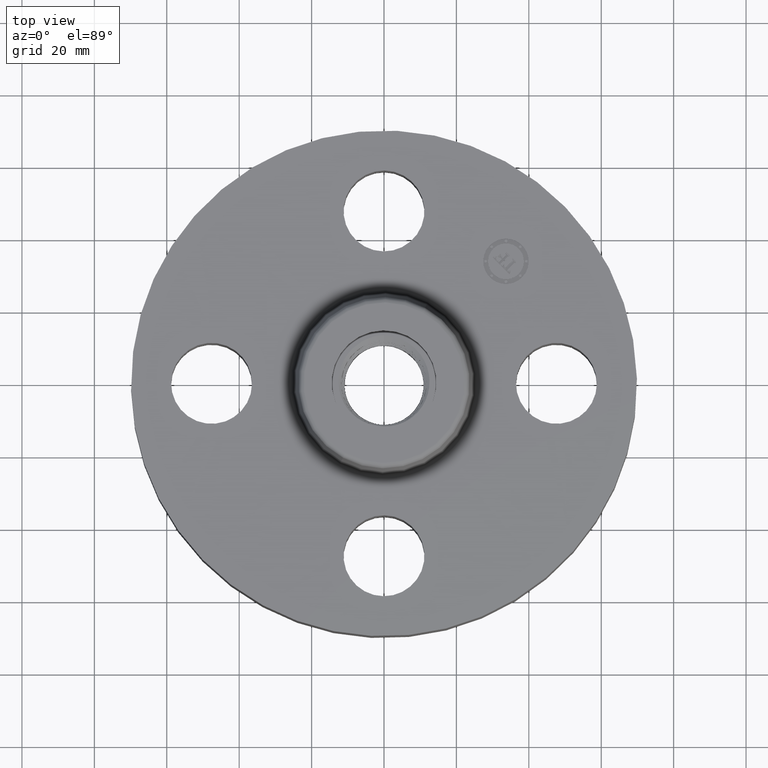
[diagram: clean part render]
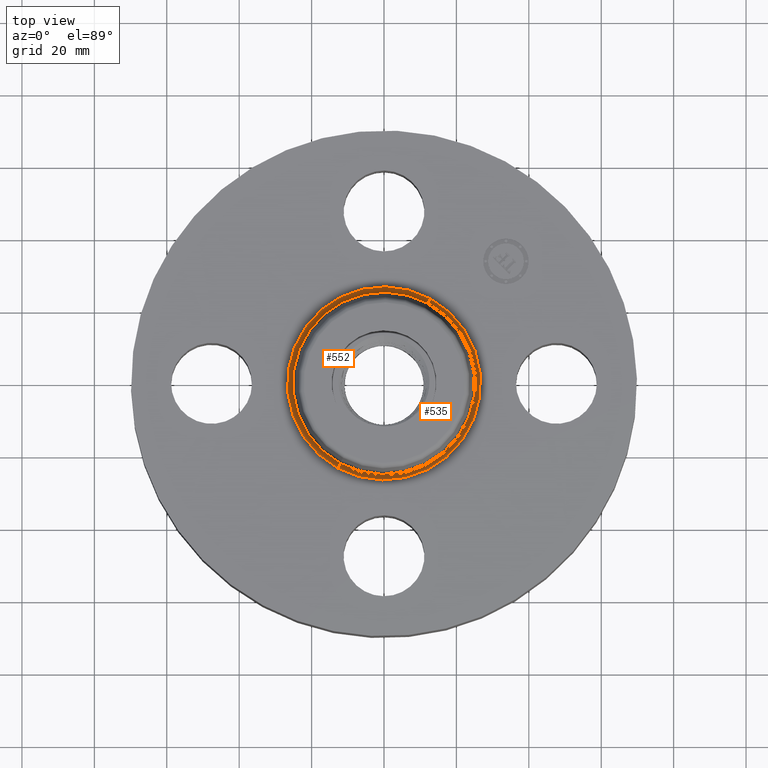
[diagram: same view with one multi-face feature highlighted, each face labeled with its STEP entity id]
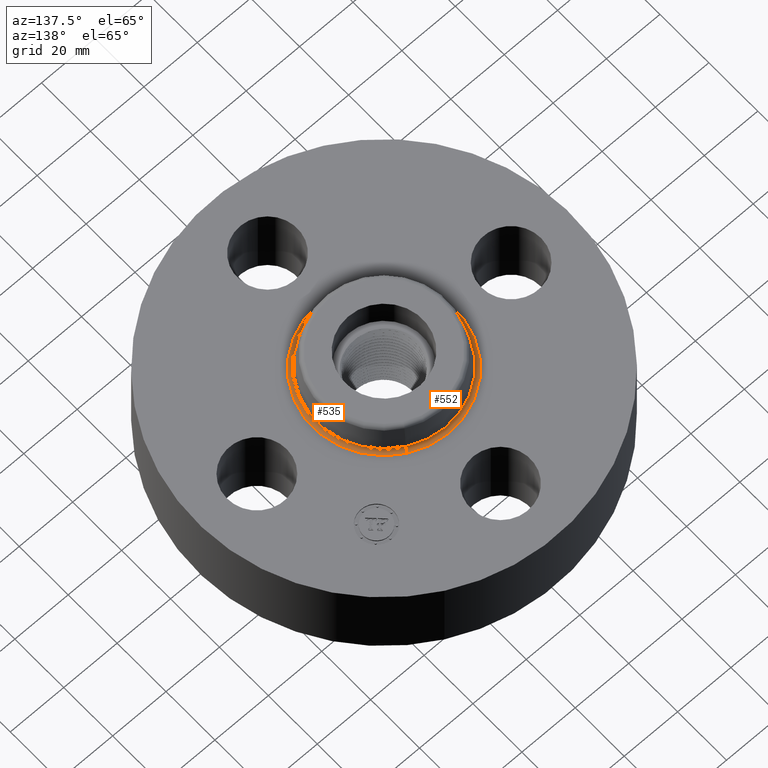
[diagram: same view with one multi-face feature highlighted, each face labeled with its STEP entity id]
A machine part, top view. The highlighted faces form ONE feature: a constant-radius fillet chain: 2 tangent blend faces with common blend radius 1.524 mm. The faces share edges in the B-rep.
A second angle (auxiliary view) of the same feature is appended — it is thin or edge-on in the first view.
Their STEP definitions:
[1] entity #552 (Torus):
#499=AXIS2_PLACEMENT_3D('Torus Axis2P3D',#496,#497,#498) ;
#512=AXIS2_PLACEMENT_3D('Circle Axis2P3D',#510,#511,$) ;
#526=AXIS2_PLACEMENT_3D('Circle Axis2P3D',#524,#525,$) ;
#538=AXIS2_PLACEMENT_3D('Circle Axis2P3D',#536,#537,$) ;
#543=AXIS2_PLACEMENT_3D('Circle Axis2P3D',#541,#542,$) ;
#496=CARTESIAN_POINT('Axis2P3D Location',(0.,0.,1.31000000001)) ;
#505=CARTESIAN_POINT('Vertex',(0.503562686163,0.921765314135,1.25000000001)) ;
#507=CARTESIAN_POINT('Vertex',(-0.503562686163,-0.921765314135,1.25000000001)) ;
#510=CARTESIAN_POINT('Axis2P3D Location',(0.503562686163,0.921765314135,1.31000000001)) ;
#514=CARTESIAN_POINT('Vertex',(0.475234166919,0.869910307483,1.29958110935)) ;
#521=CARTESIAN_POINT('Vertex',(-0.475234166919,-0.869910307483,1.29958110935)) ;
#524=CARTESIAN_POINT('Axis2P3D Location',(-0.503562686163,-0.921765314135,1.31000000001)) ;
#536=CARTESIAN_POINT('Axis2P3D Location',(0.,0.,1.25000000001)) ;
#541=CARTESIAN_POINT('Axis2P3D Location',(0.,0.,1.29958110935)) ;
#497=DIRECTION('Axis2P3D Direction',(0.,0.,-0.0393700787402)) ;
#498=DIRECTION('Axis2P3D XDirection',(-0.0188750212049,-0.0345504945626,0.)) ;
#511=DIRECTION('Axis2P3D Direction',(-0.0345504945626,0.0188750212049,0.)) ;
#525=DIRECTION('Axis2P3D Direction',(0.0345504945626,-0.0188750212049,0.)) ;
#537=DIRECTION('Axis2P3D Direction',(0.,0.,-0.0393700787402)) ;
#542=DIRECTION('Axis2P3D Direction',(0.,0.,-0.0393700787402)) ;
#547=ORIENTED_EDGE('',*,*,#540,.F.) ;
#548=ORIENTED_EDGE('',*,*,#528,.T.) ;
#549=ORIENTED_EDGE('',*,*,#545,.T.) ;
#550=ORIENTED_EDGE('',*,*,#516,.F.) ;
#552=ADVANCED_FACE('PartBody',(#551),#500,.F.) ;
#513=CIRCLE('generated circle',#512,0.0600000000002) ;
#527=CIRCLE('generated circle',#526,0.0600000000002) ;
#539=CIRCLE('generated circle',#538,1.05034597787) ;
#544=CIRCLE('generated circle',#543,0.991257512694) ;
#500=TOROIDAL_SURFACE('homeo Torus',#499,1.05034597787,0.0600000000002) ;
#516=EDGE_CURVE('',#506,#515,#513,.T.) ;
#528=EDGE_CURVE('',#508,#522,#527,.T.) ;
#540=EDGE_CURVE('',#508,#506,#539,.T.) ;
#545=EDGE_CURVE('',#522,#515,#544,.T.) ;
#546=EDGE_LOOP('',(#547,#548,#549,#550)) ;
#551=FACE_OUTER_BOUND('',#546,.T.) ;
#506=VERTEX_POINT('',#505) ;
#508=VERTEX_POINT('',#507) ;
#515=VERTEX_POINT('',#514) ;
#522=VERTEX_POINT('',#521) ;
[2] entity #535 (Torus):
#499=AXIS2_PLACEMENT_3D('Torus Axis2P3D',#496,#497,#498) ;
#503=AXIS2_PLACEMENT_3D('Circle Axis2P3D',#501,#502,$) ;
#512=AXIS2_PLACEMENT_3D('Circle Axis2P3D',#510,#511,$) ;
#519=AXIS2_PLACEMENT_3D('Circle Axis2P3D',#517,#518,$) ;
#526=AXIS2_PLACEMENT_3D('Circle Axis2P3D',#524,#525,$) ;
#496=CARTESIAN_POINT('Axis2P3D Location',(0.,0.,1.31000000001)) ;
#501=CARTESIAN_POINT('Axis2P3D Location',(0.,0.,1.25000000001)) ;
#505=CARTESIAN_POINT('Vertex',(0.503562686163,0.921765314135,1.25000000001)) ;
#507=CARTESIAN_POINT('Vertex',(-0.503562686163,-0.921765314135,1.25000000001)) ;
#510=CARTESIAN_POINT('Axis2P3D Location',(0.503562686163,0.921765314135,1.31000000001)) ;
#514=CARTESIAN_POINT('Vertex',(0.475234166919,0.869910307483,1.29958110935)) ;
#517=CARTESIAN_POINT('Axis2P3D Location',(0.,0.,1.29958110935)) ;
#521=CARTESIAN_POINT('Vertex',(-0.475234166919,-0.869910307483,1.29958110935)) ;
#524=CARTESIAN_POINT('Axis2P3D Location',(-0.503562686163,-0.921765314135,1.31000000001)) ;
#497=DIRECTION('Axis2P3D Direction',(0.,0.,-0.0393700787402)) ;
#498=DIRECTION('Axis2P3D XDirection',(-0.0188750212049,-0.0345504945626,0.)) ;
#502=DIRECTION('Axis2P3D Direction',(0.,0.,-0.0393700787402)) ;
#511=DIRECTION('Axis2P3D Direction',(-0.0345504945626,0.0188750212049,0.)) ;
#518=DIRECTION('Axis2P3D Direction',(0.,0.,-0.0393700787402)) ;
#525=DIRECTION('Axis2P3D Direction',(0.0345504945626,-0.0188750212049,0.)) ;
#530=ORIENTED_EDGE('',*,*,#509,.F.) ;
#531=ORIENTED_EDGE('',*,*,#516,.T.) ;
#532=ORIENTED_EDGE('',*,*,#523,.T.) ;
#533=ORIENTED_EDGE('',*,*,#528,.F.) ;
#535=ADVANCED_FACE('PartBody',(#534),#500,.F.) ;
#504=CIRCLE('generated circle',#503,1.05034597787) ;
#513=CIRCLE('generated circle',#512,0.0600000000002) ;
#520=CIRCLE('generated circle',#519,0.991257512694) ;
#527=CIRCLE('generated circle',#526,0.0600000000002) ;
#500=TOROIDAL_SURFACE('homeo Torus',#499,1.05034597787,0.0600000000002) ;
#509=EDGE_CURVE('',#506,#508,#504,.T.) ;
#516=EDGE_CURVE('',#506,#515,#513,.T.) ;
#523=EDGE_CURVE('',#515,#522,#520,.T.) ;
#528=EDGE_CURVE('',#508,#522,#527,.T.) ;
#529=EDGE_LOOP('',(#530,#531,#532,#533)) ;
#534=FACE_OUTER_BOUND('',#529,.T.) ;
#506=VERTEX_POINT('',#505) ;
#508=VERTEX_POINT('',#507) ;
#515=VERTEX_POINT('',#514) ;
#522=VERTEX_POINT('',#521) ;